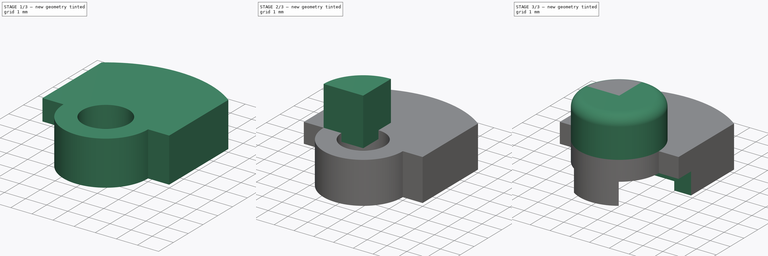
[diagram: build sequence overview — one tinted view per stage of 3, left to right]
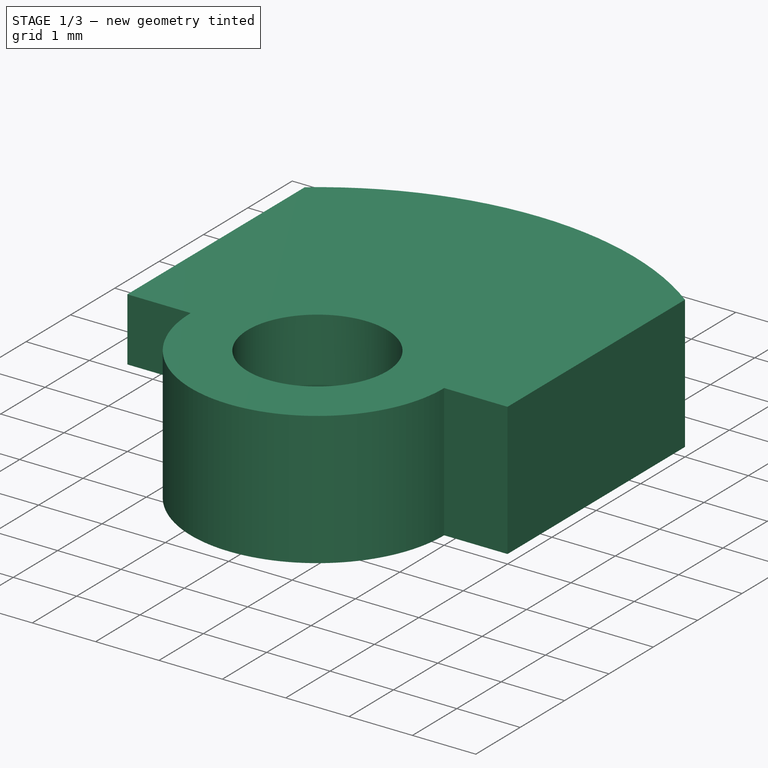
[diagram: stage 1 of 3 — iso view after this stage's code; geometry added in this stage tinted green]
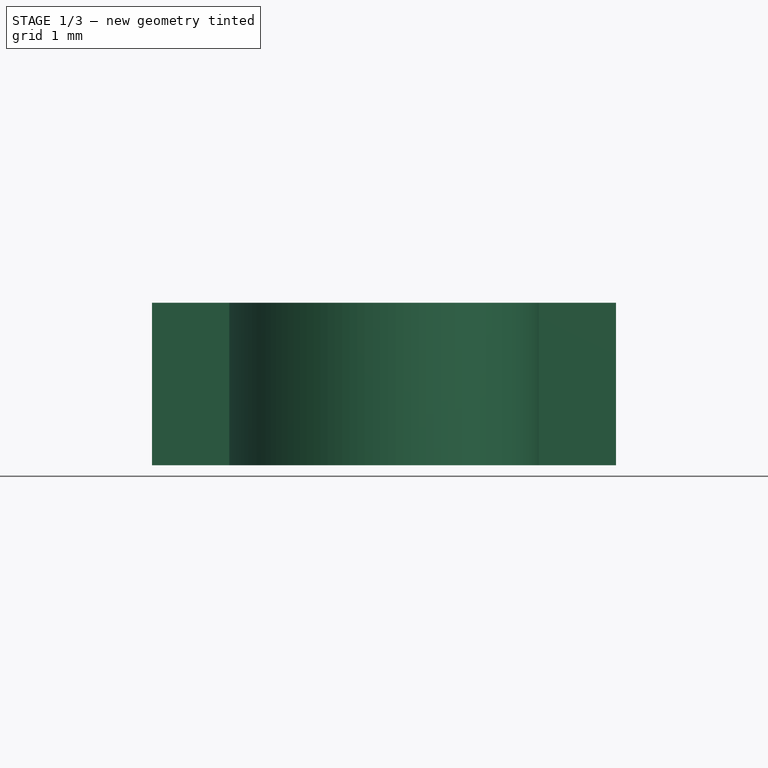
[diagram: stage 1 of 3 — front view after this stage's code; geometry added in this stage tinted green]
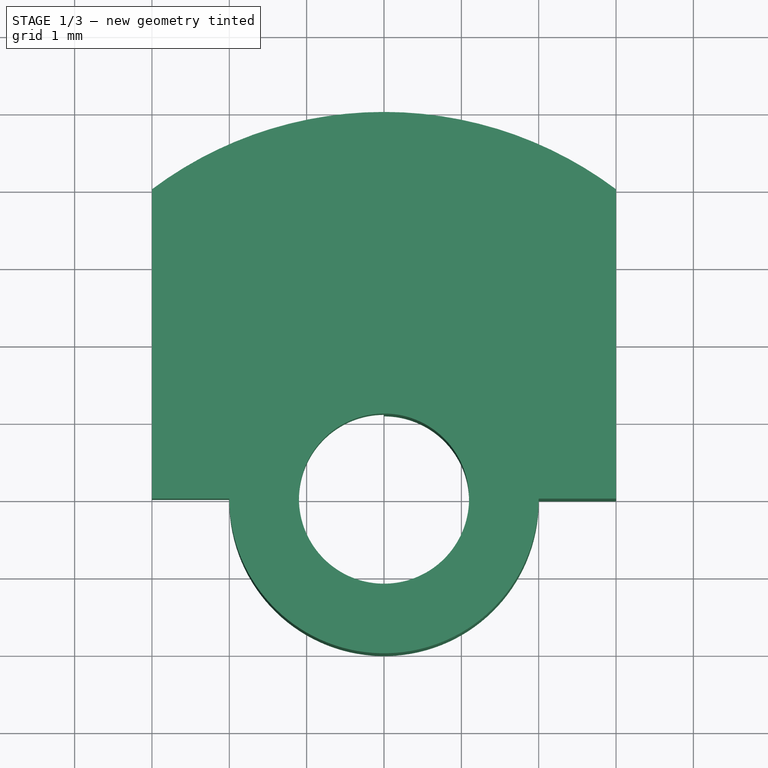
[diagram: stage 1 of 3 — top view after this stage's code; geometry added in this stage tinted green]
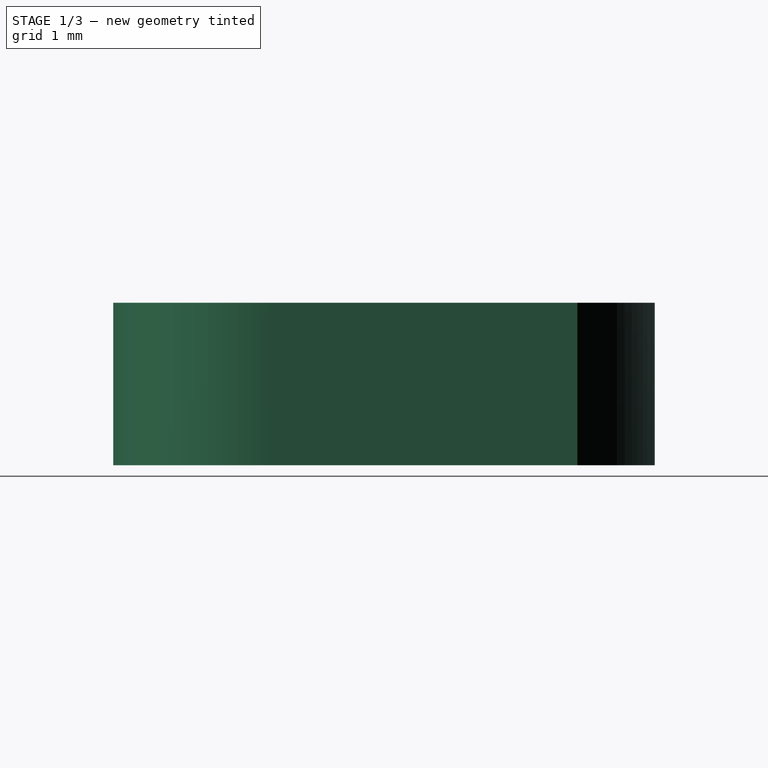
[diagram: stage 1 of 3 — right view after this stage's code; geometry added in this stage tinted green]
FCSTD DOCUMENT  (FreeCAD 0.19R24291 (Git))
Label: button-small
License: All rights reserved
LicenseURL: http://en.wikipedia.org/wiki/All_rights_reserved
objects: PartDesign::Plane×5, Sketcher::SketchObject×4, PartDesign::Mirrored×2, PartDesign::Pad×2, PartDesign::Pocket×1, PartDesign::Fillet×1, PartDesign::MultiTransform×1, PartDesign::Body×1
note: 21 computed .brp shape members not serialized (recipe doc carries the construction recipe); baked Part::Feature solids carry a one-line shape summary decoded from their .brp

FEATURE [PartDesign::Plane] DatumPlane  label="CaseTop"
  AttachmentOffset = pos=(0,0,5) rot=(0,0,1;0rad)
  Length = 60
  MapMode = 5
  Placement = pos=(0,0,5) rot=(0,0,1;0rad)
  ResizeMode = 0
  Support = -> [XY_Plane]
  Width = 60
FEATURE [PartDesign::Plane] DatumPlane001  label="CaseInner"
  AttachmentOffset = pos=(0,0,-2.5) rot=(0,0,1;0rad)
  Length = 60
  MapMode = 5
  Placement = pos=(0,0,2.5) rot=(0,0,1;0rad)
  ResizeMode = 0
  Support = -> [DatumPlane]
  Width = 60
FEATURE [PartDesign::Plane] DatumPlane002  label="SwitchCaseTopPlane"
  AttachmentOffset = pos=(0,0,1.5) rot=(0,0,1;0rad)
  Length = 60
  MapMode = 2
  Placement = pos=(0,0,1.5) rot=(0,0,1;0rad)
  ResizeMode = 0
  Support = -> [XY_Plane]
  Width = 60
FEATURE [PartDesign::Plane] DatumPlane003  label="SwitchButtonTopPlaneDown"
  AttachmentOffset = pos=(0,0,2.1) rot=(0,0,1;0rad)
  Length = 60
  MapMode = 5
  Placement = pos=(0,0,2.1) rot=(0,0,1;0rad)
  ResizeMode = 0
  Support = -> [XY_Plane]
  Width = 60
FEATURE [PartDesign::Plane] DatumPlane004  label="SwitchTravel"
  AttachmentOffset = pos=(0,0,0.4) rot=(0,0,1;0rad)
  Length = 60
  MapMode = 5
  Placement = pos=(0,0,0.4) rot=(0,0,1;0rad)
  ResizeMode = 0
  Support = -> [XY_Plane]
  Width = 60
FEATURE [Sketcher::SketchObject] Sketch  label="ButtonCaseCutout"
  FullyConstrained = true
  MapMode = 5
  Placement = pos=(0,0,1.5) rot=(0,0,1;0rad)
  Support = -> [DatumPlane002]
  sketch-geometry (6):
    g0: LineSegment StartX=0 StartY=1.65 StartZ=0 EndX=-2.15 EndY=1.65 EndZ=0
    g1: LineSegment StartX=-2.15 StartY=1.65 StartZ=0 EndX=-2.15 EndY=0.9 EndZ=0
    g2: LineSegment StartX=-2.15 StartY=0.9 StartZ=0 EndX=-10 EndY=0.9 EndZ=0
    g3: LineSegment StartX=-10 StartY=0.9 StartZ=0 EndX=-10 EndY=0 EndZ=0
    g4: LineSegment StartX=-10 StartY=0 StartZ=0 EndX=0 EndY=0 EndZ=0
    g5: LineSegment StartX=0 StartY=0 StartZ=0 EndX=0 EndY=1.65 EndZ=0
  constraints (17):
    c: PointOnObject(g0,g-2)
    c: Horizontal(g0)
    c: Coincident(g0,g1)
    c: Vertical(g1)
    c: Coincident(g1,g2)
    c: Horizontal(g2)
    c: Coincident(g2,g3)
    c: PointOnObject(g3,g-1)
    c: Vertical(g3)
    c: Coincident(g3,g4)
    c: Coincident(g0,g5)
    c: DistanceX(g0,g0) = 2.15
    c: DistanceX(g2,g0) = 10
    c: DistanceY(g-1,g1) = 0.9
    c: DistanceY(g-1,g0) = 1.65
    c: Coincident(g5,g-1)
    c: Coincident(g4,g5)
FEATURE [Sketcher::SketchObject] Sketch002
  AttachmentOffset = pos=(0,0,-0.5) rot=(0,0,1;0rad)
  FullyConstrained = true
  MapMode = 5
  Placement = pos=(0,0,4.5) rot=(0,0,1;0rad)
  Support = -> [DatumPlane]
  sketch-geometry (3):
    g0: ArcOfCircle CenterX=0 CenterY=0 CenterZ=0 NormalX=0 NormalY=0 NormalZ=1 AngleXU=0 Radius=2 StartAngle=1.5708 EndAngle=3.14159
    g1: LineSegment StartX=1e-16 StartY=2 StartZ=0 EndX=0 EndY=0 EndZ=0
    g2: LineSegment StartX=0 StartY=0 StartZ=0 EndX=-2 EndY=2e-16 EndZ=0
  constraints (8):
    c: Coincident(g0,g-1)
    c: PointOnObject(g0,g-1)
    c: PointOnObject(g0,g-2)
    c: Coincident(g1,g0)
    c: Coincident(g2,g1)
    c: Coincident(g0,g2)
    c: Coincident(g0,g1)
    c: Radius(g0) = 2
FEATURE [Sketcher::SketchObject] Sketch004
  AttachmentOffset = pos=(0,0,-0.8) rot=(0,0,1;0rad)
  FullyConstrained = true
  MapMode = 5
  Placement = pos=(0,0,1.7) rot=(0,0,1;0rad)
  Support = -> [DatumPlane001]
  sketch-geometry (6):
    g0: ArcOfCircle CenterX=0 CenterY=0 CenterZ=0 NormalX=0 NormalY=0 NormalZ=1 AngleXU=0 Radius=1.5 StartAngle=0 EndAngle=3.14159
    g1: ArcOfCircle CenterX=0 CenterY=0 CenterZ=0 NormalX=0 NormalY=0 NormalZ=1 AngleXU=0 Radius=4 StartAngle=1.0472 EndAngle=2.0944
    g2: LineSegment StartX=-2 StartY=3.4641 StartZ=0 EndX=-2 EndY=0 EndZ=0
    g3: LineSegment StartX=-2 StartY=2e-16 StartZ=0 EndX=-1.5 EndY=2e-16 EndZ=0
    g4: LineSegment StartX=1.5 StartY=0 StartZ=0 EndX=2 EndY=0 EndZ=0
    g5: LineSegment StartX=2 StartY=0 StartZ=0 EndX=2 EndY=3.4641 EndZ=0
  constraints (17):
    c: Coincident(g0,g-1)
    c: PointOnObject(g0,g-1)
    c: PointOnObject(g0,g-1)
    c: Coincident(g1,g0)
    c: Coincident(g2,g3)
    c: Coincident(g3,g0)
    c: Coincident(g0,g4)
    c: Coincident(g4,g5)
    c: Coincident(g5,g1)
    c: Vertical(g5)
    c: Horizontal(g3)
    c: Vertical(g2)
    c: Radius(g1) = 4
    c: Coincident(g1,g2)
    c: Radius(g0) = 1.5
    c: Symmetric(g4,g2,g-2)
    c: DistanceX(g2,g4) = 4
FEATURE [PartDesign::Mirrored] Mirrored
  MirrorPlane = -> YZ_Plane
  Placement = pos=(0,0,0.4) rot=(0,0,1;0rad)
FEATURE [PartDesign::Mirrored] Mirrored001
  MirrorPlane = -> XZ_Plane
  Placement = pos=(0,0,0.4) rot=(0,0,1;0rad)
FEATURE [Sketcher::SketchObject] Sketch005
  FullyConstrained = true
  MapMode = 5
  Placement = pos=(0,0,0.4) rot=(0,0,1;0rad)
  Support = -> [DatumPlane004]
  sketch-geometry (7):
    g0: ArcOfCircle CenterX=0 CenterY=0 CenterZ=0 NormalX=0 NormalY=0 NormalZ=1 AngleXU=0 Radius=2 StartAngle=3.14159 EndAngle=6.28319
    g1: Circle CenterX=0 CenterY=0 CenterZ=0 NormalX=0 NormalY=0 NormalZ=1 AngleXU=0 Radius=1.1
    g2: ArcOfCircle CenterX=0 CenterY=0 CenterZ=0 NormalX=0 NormalY=0 NormalZ=1 AngleXU=0 Radius=5 StartAngle=0.927295 EndAngle=2.2143
    g3: LineSegment StartX=-3 StartY=4 StartZ=0 EndX=-3 EndY=9e-16 EndZ=0
    g4: LineSegment StartX=-3 StartY=4e-16 StartZ=0 EndX=-2 EndY=4e-16 EndZ=0
    g5: LineSegment StartX=2 StartY=-5e-16 StartZ=0 EndX=3 EndY=0 EndZ=0
    g6: LineSegment StartX=3 StartY=0 StartZ=0 EndX=3 EndY=4 EndZ=0
  constraints (19):
    c: Radius(g0) = 2
    c: Coincident(g1,g0)
    c: Radius(g1) = 1.1
    c: Coincident(g0,g-1)
    c: PointOnObject(g0,g-1)
    c: PointOnObject(g0,g-1)
    c: Coincident(g2,g0)
    c: Radius(g2) = 5
    c: Coincident(g3,g2)
    c: Vertical(g3)
    c: Coincident(g4,g0)
    c: Coincident(g5,g0)
    c: Coincident(g6,g5)
    c: Coincident(g6,g2)
    c: Vertical(g6)
    c: Horizontal(g4)
    c: DistanceX(g3,g0) = 3
    c: Symmetric(g3,g5,g-2)
    c: Coincident(g3,g4)
FEATURE [PartDesign::Pad] Pad001  label="ActuatorBody"
  Direction = (1,1,1)
  Length = 10
  Length2 = 100
  Placement = pos=(0,0,0.4) rot=(0,0,1;0rad)
  Profile = -> Sketch005
  Type = 3
  UpToFace = -> DatumPlane001
FEATURE [PartDesign::Pocket] Pocket  label="SwitchCaseCutout"
  BaseFeature = -> Pad001
  Length = 5
  Length2 = 100
  Placement = pos=(0,0,0.4) rot=(0,0,1;0rad)
  Profile = -> Sketch
  Type = 1
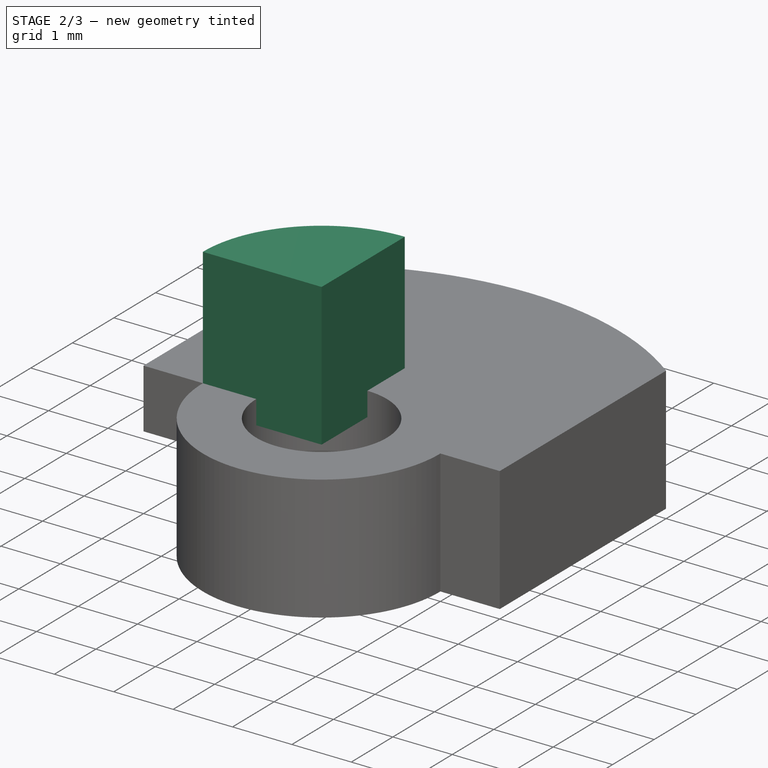
[diagram: stage 2 of 3 — iso view after this stage's code; geometry added in this stage tinted green]
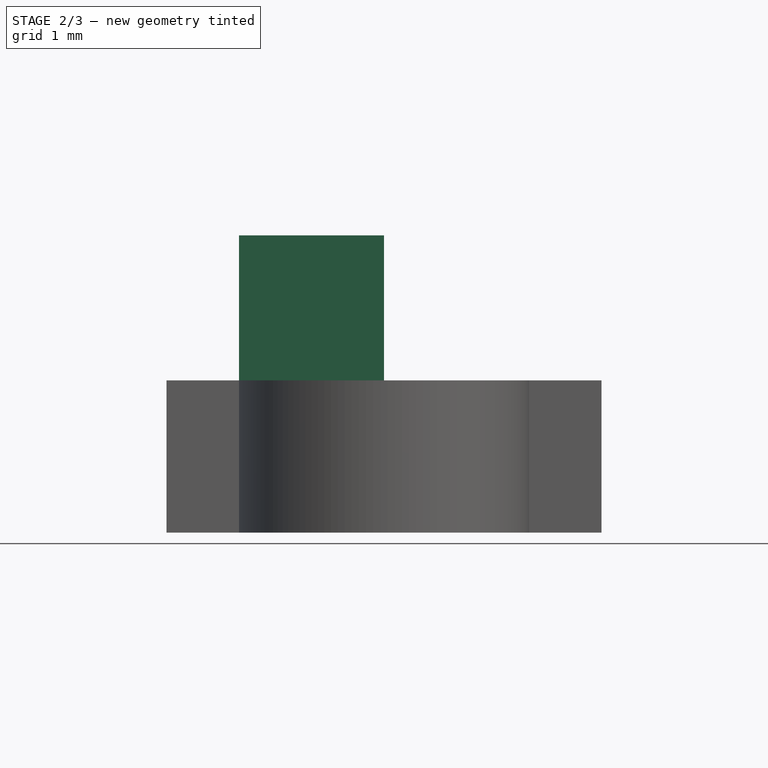
[diagram: stage 2 of 3 — front view after this stage's code; geometry added in this stage tinted green]
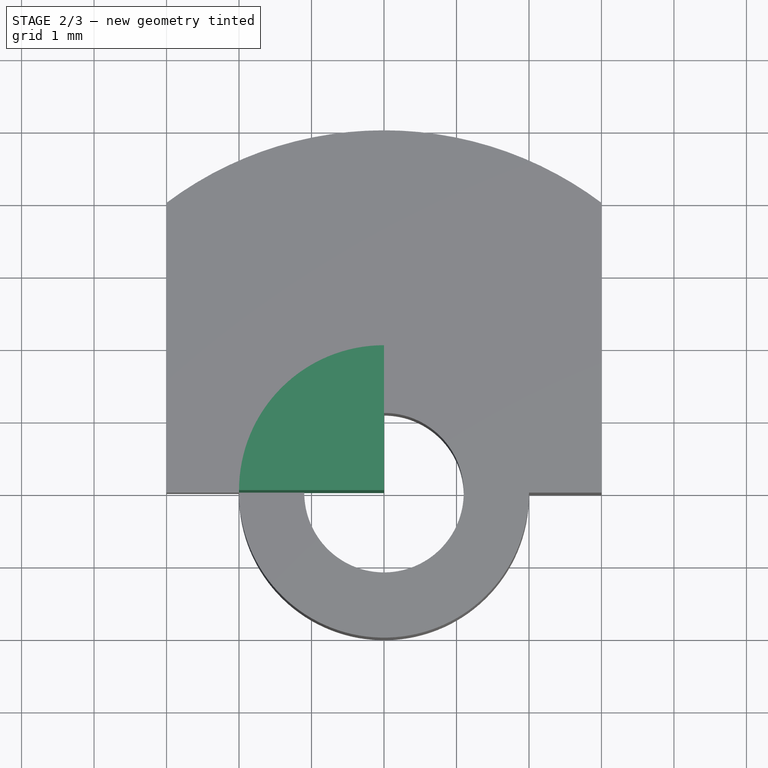
[diagram: stage 2 of 3 — top view after this stage's code; geometry added in this stage tinted green]
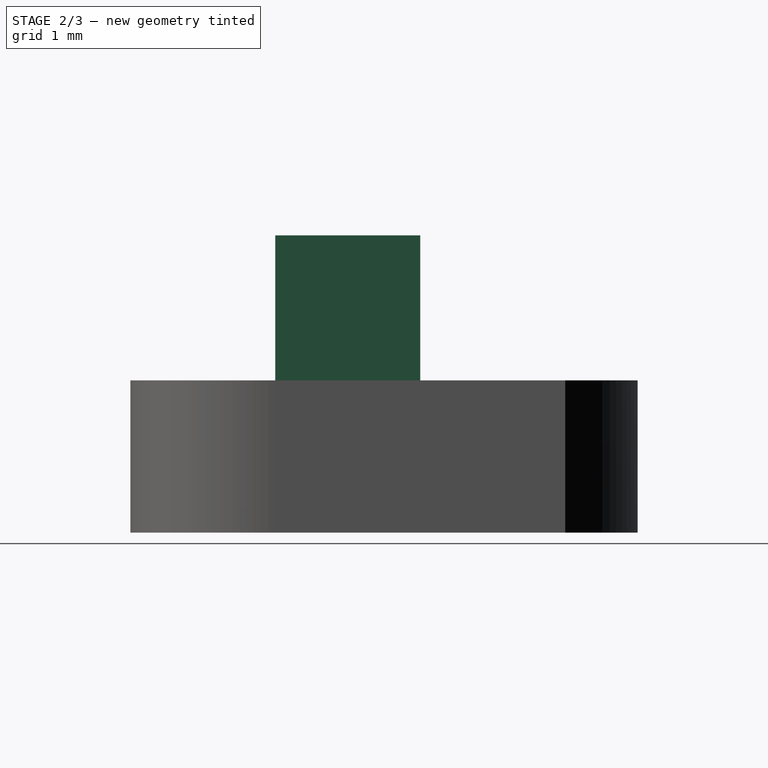
[diagram: stage 2 of 3 — right view after this stage's code; geometry added in this stage tinted green]
FEATURE [PartDesign::Pad] Pad  label="Button"
  BaseFeature = -> Pocket
  Direction = (1,1,1)
  Length = 10
  Length2 = 100
  Placement = pos=(0,0,0.4) rot=(0,0,1;0rad)
  Profile = -> Sketch002
  Reversed = true
  Type = 3
  UpToFace = -> DatumPlane003
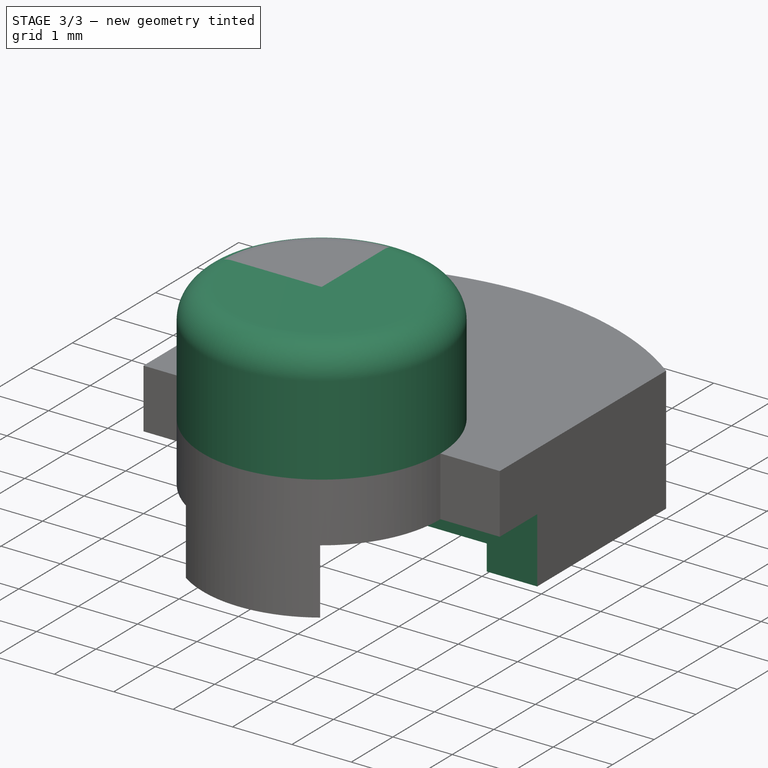
[diagram: stage 3 of 3 — iso view after this stage's code; geometry added in this stage tinted green]
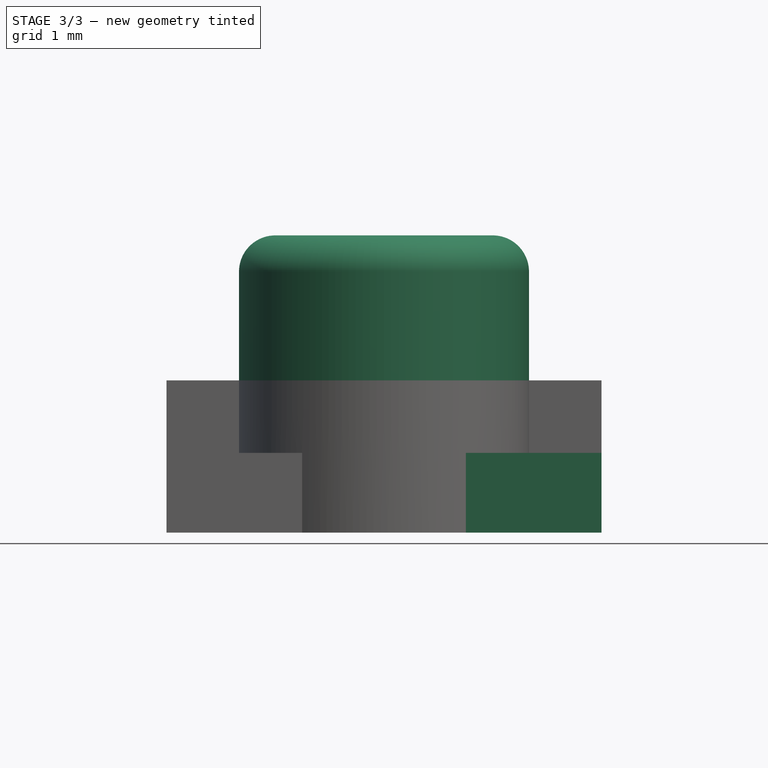
[diagram: stage 3 of 3 — front view after this stage's code; geometry added in this stage tinted green]
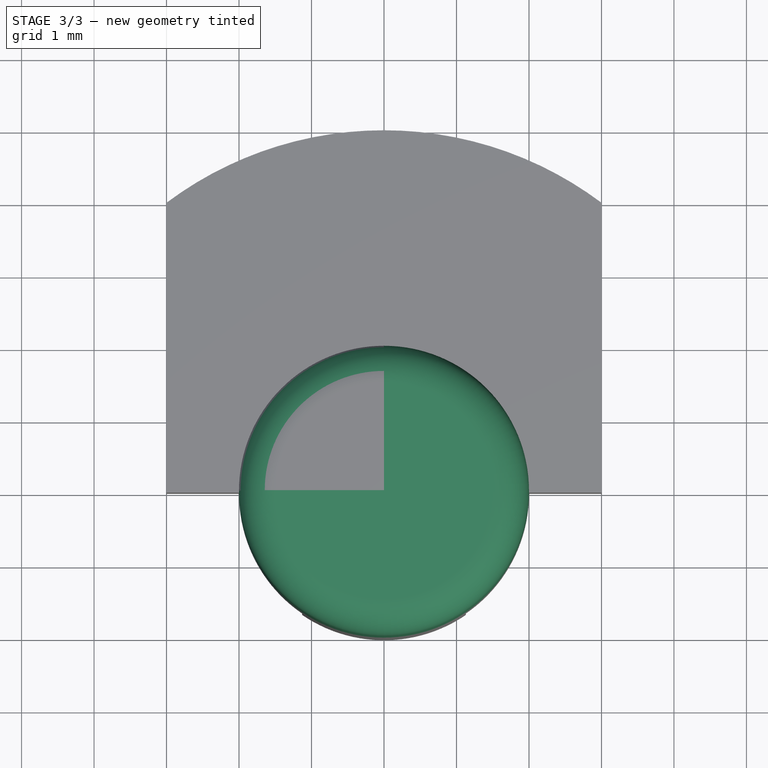
[diagram: stage 3 of 3 — top view after this stage's code; geometry added in this stage tinted green]
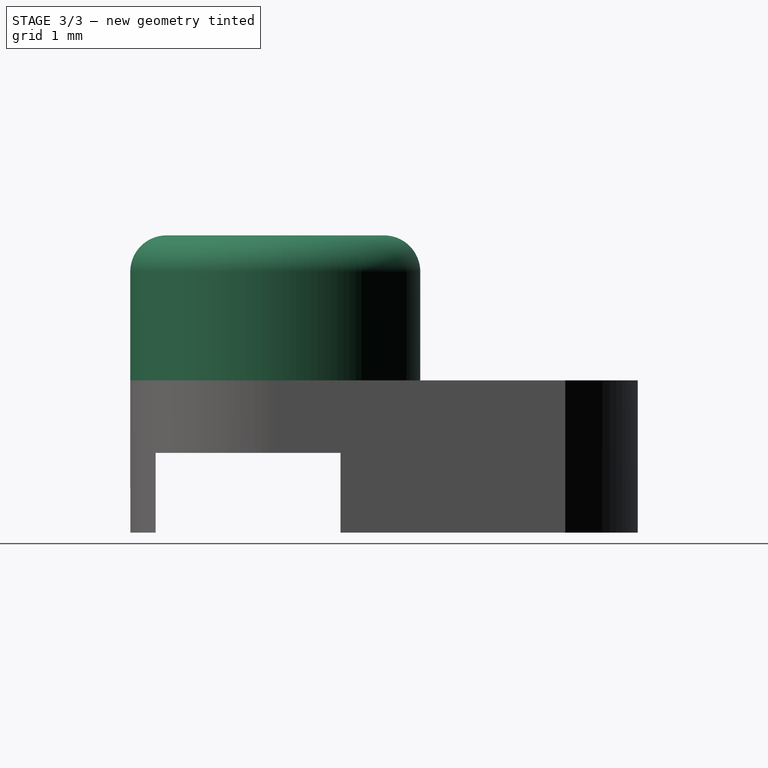
[diagram: stage 3 of 3 — right view after this stage's code; geometry added in this stage tinted green]
FEATURE [PartDesign::Fillet] Fillet
  Base = -> Pad [Edge57]
  BaseFeature = -> Pad
  Placement = pos=(0,0,0.4) rot=(0,0,1;0rad)
  Radius = 0.5
  SupportTransform = false
FEATURE [PartDesign::MultiTransform] MultiTransform
  BaseFeature = -> Fillet
  Originals = -> [Pocket,Pad,Fillet]
  Placement = pos=(0,0,0.4) rot=(0,0,1;0rad)
  Transformations = -> [Mirrored,Mirrored001]
FEATURE [PartDesign::Body] Body
  Group = -> [DatumPlane,DatumPlane001,DatumPlane002,DatumPlane003,DatumPlane004,Sketch,Sketch002,Sketch004,Sketch005,Pad001,Pocket,Pad,Fillet,MultiTransform,Mirrored,Mirrored001]
  Origin = -> Origin
  Tip = -> Fillet
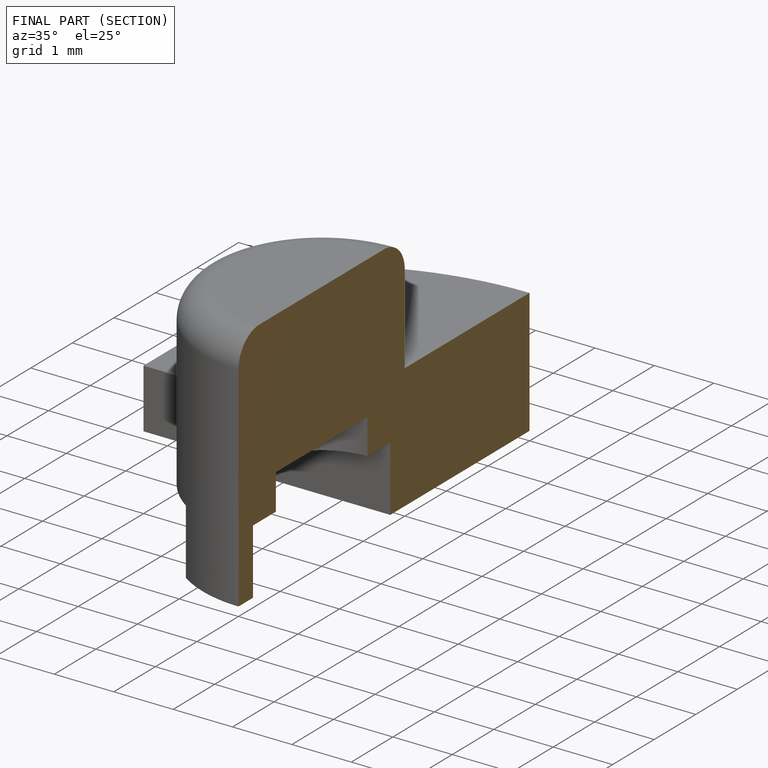
[diagram: finished part — half-section view (interior)]
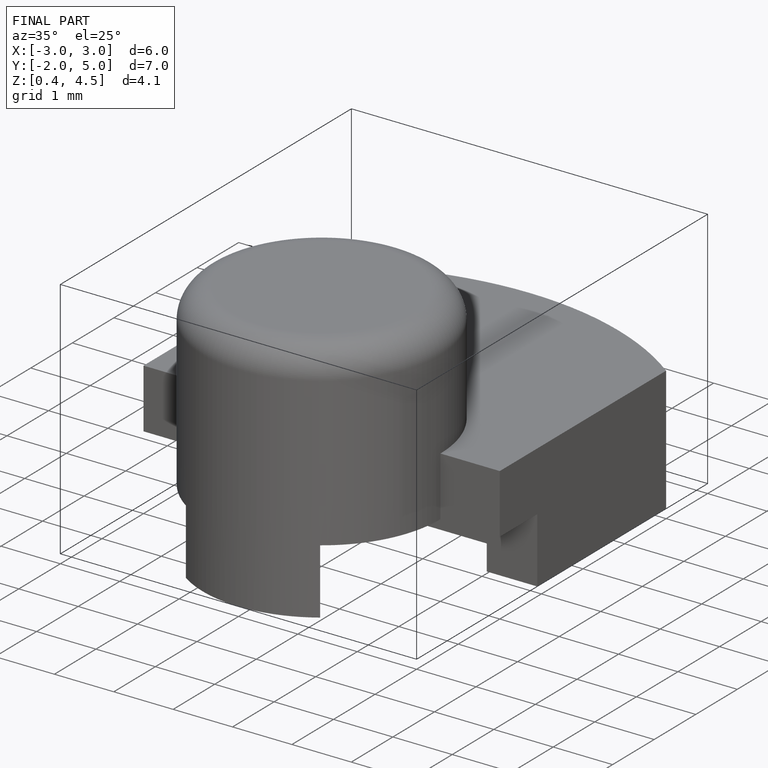
[diagram: finished part — iso view with bounding-box wireframe]
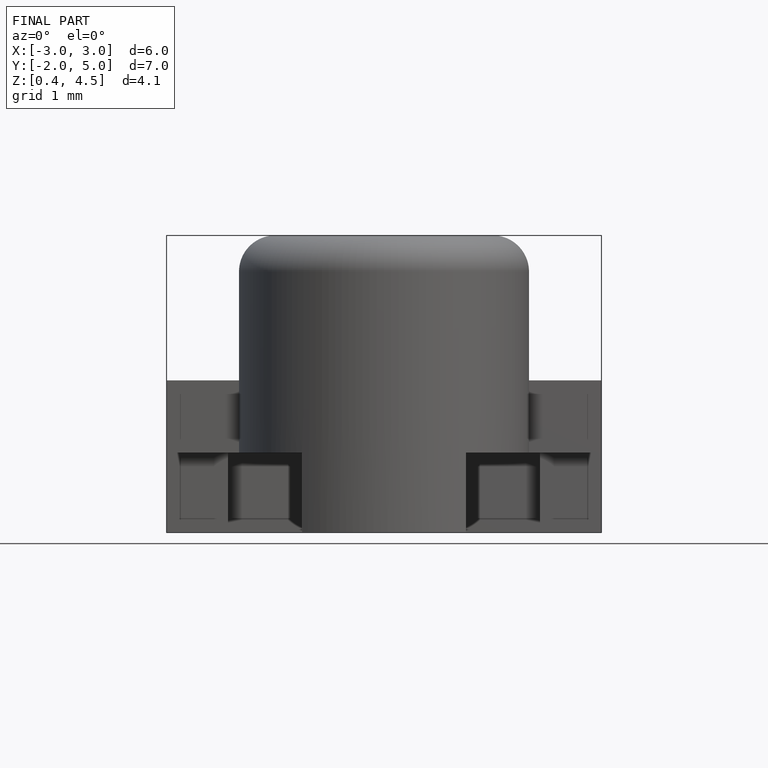
[diagram: finished part — front view with bounding-box wireframe]
